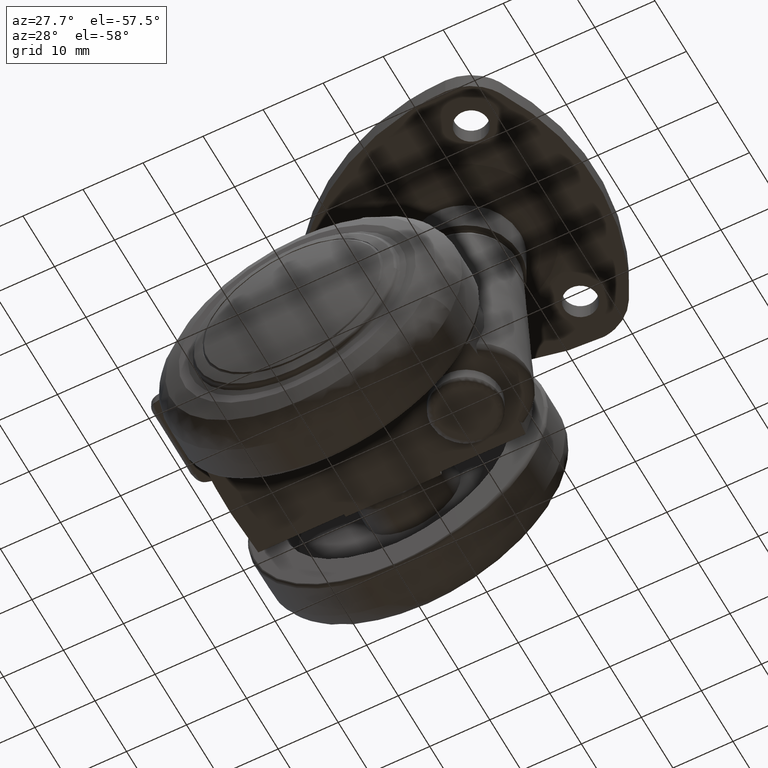
[diagram: clean part render]
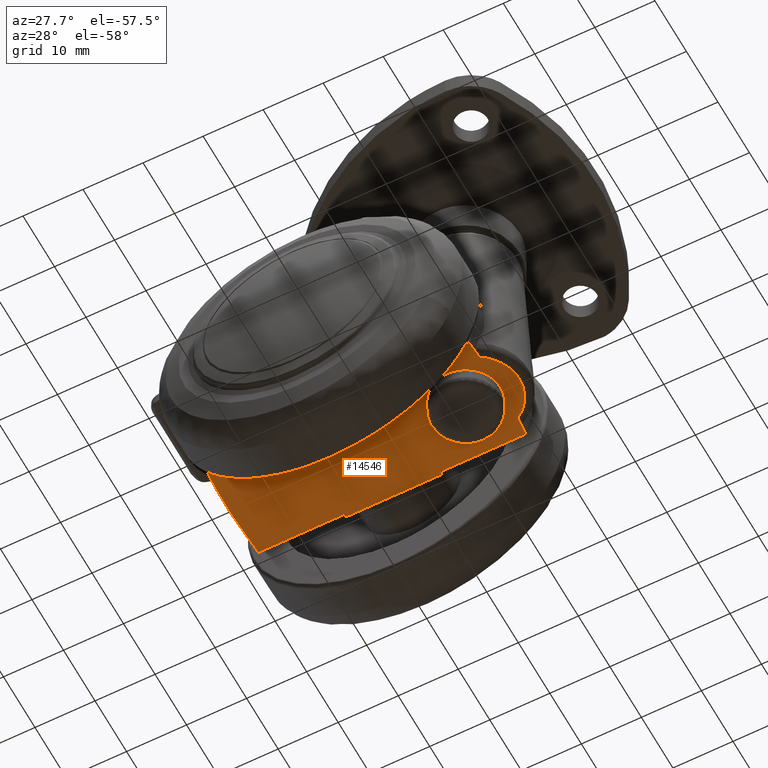
[diagram: same view with one face highlighted and labeled with its STEP entity id]
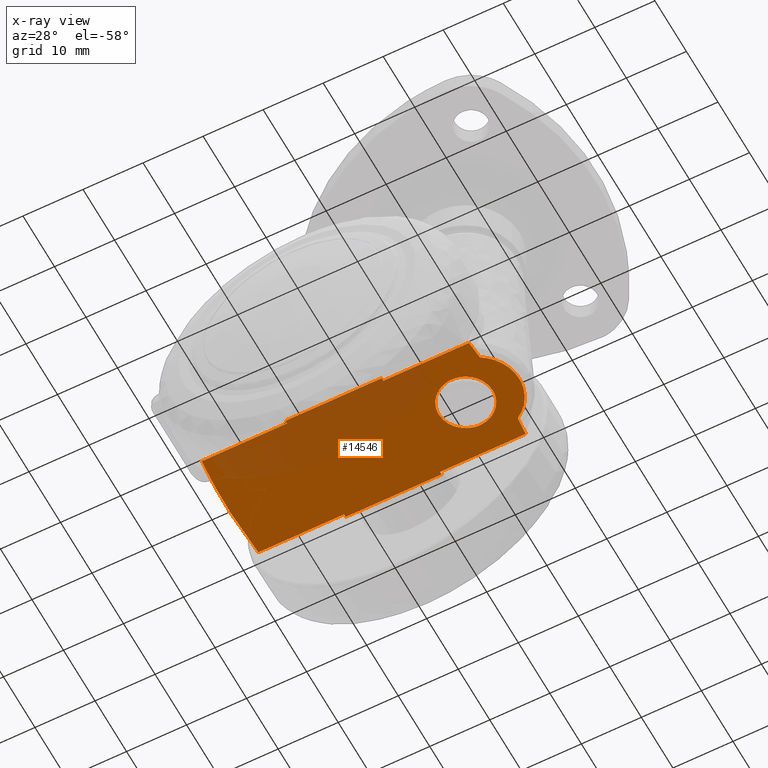
[diagram: x-ray of the same camera — body ghosted, the highlighted face saturated]
A machine part, auxiliary view. The second image highlights one B-rep face of the part: STEP entity #14546.
The next image is the same camera in x-ray: the body ghosted, the highlighted face saturated — about 31% of this face is hidden behind the body in this view.
In plain terms, the highlighted face is a freeform B-spline surface patch.
Its self-contained STEP definition (entity closure, byte-faithful):
#10879=CARTESIAN_POINT('',(16.441430532839370,-4.465198780604559,-7.499999999999998));
#10880=VERTEX_POINT('',#10879);
#10886=CARTESIAN_POINT('',(12.500000000000000,-2.755364E-015,-7.500000000000000));
#10887=VERTEX_POINT('',#10886);
#10888=CARTESIAN_POINT('',(16.441430532839366,-4.465198780604559,-7.499999999999998));
#10889=CARTESIAN_POINT('',(12.499999999999998,-3.972149565837255,-7.499999999999999));
#10890=CARTESIAN_POINT('',(12.500000000000000,-2.755364E-015,-7.500000000000000));
#10898=(BOUNDED_CURVE()B_SPLINE_CURVE(2,(#10888,#10889,#10890),.UNSPECIFIED.,.F.,.U.)B_SPLINE_CURVE_WITH_KNOTS((3,3),(0.271473681878583,0.500000000000000),.UNSPECIFIED.)CURVE()GEOMETRIC_REPRESENTATION_ITEM()RATIONAL_B_SPLINE_CURVE((0.954005909785564,0.732264764407324,1.0))REPRESENTATION_ITEM(''));
#10899=EDGE_CURVE('',#10880,#10887,#10898,.T.);
#10901=CARTESIAN_POINT('',(17.039269409921101,4.499828653787210,-7.500000000000000));
#10902=VERTEX_POINT('',#10901);
#10903=CARTESIAN_POINT('',(12.500000000000000,-2.755364E-015,-7.500000000000000));
#10904=CARTESIAN_POINT('',(12.499999999999998,4.499999999999998,-7.500000000000000));
#10905=CARTESIAN_POINT('',(17.0,4.499999999999997,-7.500000000000000));
#10906=CARTESIAN_POINT('',(17.019635078871588,4.499999999999997,-7.500000000000000));
#10907=CARTESIAN_POINT('',(17.039269409921097,4.499828653787210,-7.500000000000000));
#10915=(BOUNDED_CURVE()B_SPLINE_CURVE(2,(#10903,#10904,#10905,#10906,#10907),.UNSPECIFIED.,.F.,.U.)B_SPLINE_CURVE_WITH_KNOTS((3,2,3),(0.500000000000000,0.750000000000000,0.751539894348956),.UNSPECIFIED.)CURVE()GEOMETRIC_REPRESENTATION_ITEM()RATIONAL_B_SPLINE_CURVE((1.0,0.707106781186547,1.0,0.998195901550007,0.996414028068079))REPRESENTATION_ITEM(''));
#10916=EDGE_CURVE('',#10887,#10902,#10915,.T.);
#10996=CARTESIAN_POINT('',(21.500000000000000,-2.755364E-015,-7.500000000000000));
#10997=VERTEX_POINT('',#10996);
#10998=CARTESIAN_POINT('',(17.039269409921097,4.499828653787210,-7.500000000000000));
#10999=CARTESIAN_POINT('',(21.499999999999996,4.460900447323635,-7.500000000000001));
#11000=CARTESIAN_POINT('',(21.500000000000000,-2.755364E-015,-7.500000000000000));
#11008=(BOUNDED_CURVE()B_SPLINE_CURVE(2,(#10998,#10999,#11000),.UNSPECIFIED.,.F.,.U.)B_SPLINE_CURVE_WITH_KNOTS((3,3),(0.751539894348955,1.0),.UNSPECIFIED.)CURVE()GEOMETRIC_REPRESENTATION_ITEM()RATIONAL_B_SPLINE_CURVE((0.996414028068080,0.708910879636540,1.0))REPRESENTATION_ITEM(''));
#11009=EDGE_CURVE('',#10902,#10997,#11008,.T.);
#11011=CARTESIAN_POINT('',(21.500000000000000,-2.755364E-015,-7.500000000000000));
#11012=CARTESIAN_POINT('',(21.500000000000000,-4.500000000000004,-7.500000000000000));
#11013=CARTESIAN_POINT('',(17.0,-4.500000000000003,-7.500000000000000));
#11014=CARTESIAN_POINT('',(16.719631135490040,-4.500000000000003,-7.500000000000001));
#11015=CARTESIAN_POINT('',(16.441430532839373,-4.465198780604559,-7.499999999999998));
#11023=(BOUNDED_CURVE()B_SPLINE_CURVE(2,(#11011,#11012,#11013,#11014,#11015),.UNSPECIFIED.,.F.,.U.)B_SPLINE_CURVE_WITH_KNOTS((3,2,3),(0.0,0.250000000000000,0.271473681878583),.UNSPECIFIED.)CURVE()GEOMETRIC_REPRESENTATION_ITEM()RATIONAL_B_SPLINE_CURVE((1.0,0.707106781186547,1.0,0.974842016779223,0.954005909785564))REPRESENTATION_ITEM(''));
#11024=EDGE_CURVE('',#10997,#10880,#11023,.T.);
#12927=CARTESIAN_POINT('',(22.508473345036649,6.008970139218520,-7.500000000000000));
#12928=VERTEX_POINT('',#12927);
#13939=CARTESIAN_POINT('',(22.508473345036649,-6.008970139218490,-7.500000000000000));
#13940=VERTEX_POINT('',#13939);
#14046=CARTESIAN_POINT('',(22.508473345036649,6.008970139218517,-7.500000000000000));
#14047=CARTESIAN_POINT('',(25.923797487043977,3.971716724947550,-7.500000000000000));
#14048=CARTESIAN_POINT('',(25.923797487043981,8.572244E-016,-7.500000000000000));
#14049=CARTESIAN_POINT('',(25.923797487043977,-3.971716724947548,-7.500000000000000));
#14050=CARTESIAN_POINT('',(22.508473345036649,-6.008970139218516,-7.500000000000000));
#14058=(BOUNDED_CURVE()B_SPLINE_CURVE(2,(#14046,#14047,#14048,#14049,#14050),.UNSPECIFIED.,.F.,.U.)B_SPLINE_CURVE_WITH_KNOTS((3,2,3),(0.0,0.500000000000000,1.0),.UNSPECIFIED.)CURVE()GEOMETRIC_REPRESENTATION_ITEM()RATIONAL_B_SPLINE_CURVE((1.0,0.869752913530884,1.0,0.869752913530884,1.0))REPRESENTATION_ITEM(''));
#14059=EDGE_CURVE('',#12928,#13940,#14058,.T.);
#14154=CARTESIAN_POINT('',(8.000000000000199,-9.0,-7.500000000000000));
#14155=VERTEX_POINT('',#14154);
#14168=CARTESIAN_POINT('',(8.000000000000231,-9.499999999999890,-7.500000000000000));
#14169=VERTEX_POINT('',#14168);
#14175=CARTESIAN_POINT('',(8.000000000000199,-9.0,-7.500000000000000));
#14176=CARTESIAN_POINT('',(8.000000000000231,-9.499999999999890,-7.500000000000000));
#14177=QUASI_UNIFORM_CURVE('',1,(#14175,#14176),.UNSPECIFIED.,.F.,.U.);
#14178=EDGE_CURVE('',#14155,#14169,#14177,.T.);
#14197=CARTESIAN_POINT('',(-7.999999999999789,-9.0,-7.500000000000000));
#14198=VERTEX_POINT('',#14197);
#14204=CARTESIAN_POINT('',(-7.999999999999789,-9.499999999999890,-7.500000000000000));
#14205=VERTEX_POINT('',#14204);
#14206=CARTESIAN_POINT('',(-7.999999999999789,-9.0,-7.500000000000000));
#14207=CARTESIAN_POINT('',(-7.999999999999789,-9.499999999999890,-7.500000000000000));
#14208=QUASI_UNIFORM_CURVE('',1,(#14206,#14207),.UNSPECIFIED.,.F.,.U.);
#14209=EDGE_CURVE('',#14198,#14205,#14208,.T.);
#14247=CARTESIAN_POINT('',(-7.999999999999789,-9.499999999999890,-7.500000000000000));
#14248=CARTESIAN_POINT('',(8.000000000000231,-9.499999999999890,-7.500000000000000));
#14249=QUASI_UNIFORM_CURVE('',1,(#14247,#14248),.UNSPECIFIED.,.F.,.U.);
#14250=EDGE_CURVE('',#14205,#14169,#14249,.T.);
#14351=CARTESIAN_POINT('',(8.000000000000231,9.500000000000108,-7.500000000000000));
#14352=VERTEX_POINT('',#14351);
#14358=CARTESIAN_POINT('',(-7.999999999999789,9.500000000000108,-7.500000000000000));
#14359=VERTEX_POINT('',#14358);
#14360=CARTESIAN_POINT('',(-7.999999999999789,9.500000000000108,-7.500000000000000));
#14361=CARTESIAN_POINT('',(8.000000000000231,9.500000000000108,-7.500000000000000));
#14362=QUASI_UNIFORM_CURVE('',1,(#14360,#14361),.UNSPECIFIED.,.F.,.U.);
#14363=EDGE_CURVE('',#14359,#14352,#14362,.T.);
#14385=CARTESIAN_POINT('',(-7.999999999999789,8.999999999999901,-7.500000000000000));
#14386=VERTEX_POINT('',#14385);
#14387=CARTESIAN_POINT('',(-7.999999999999789,9.500000000000108,-7.500000000000000));
#14388=CARTESIAN_POINT('',(-7.999999999999789,8.999999999999901,-7.500000000000000));
#14389=QUASI_UNIFORM_CURVE('',1,(#14387,#14388),.UNSPECIFIED.,.F.,.U.);
#14390=EDGE_CURVE('',#14359,#14386,#14389,.T.);
#14407=CARTESIAN_POINT('',(8.000000000000231,8.999999999999901,-7.500000000000000));
#14408=VERTEX_POINT('',#14407);
#14414=CARTESIAN_POINT('',(8.000000000000231,9.500000000000108,-7.500000000000000));
#14415=CARTESIAN_POINT('',(8.000000000000231,8.999999999999901,-7.500000000000000));
#14416=QUASI_UNIFORM_CURVE('',1,(#14414,#14415),.UNSPECIFIED.,.F.,.U.);
#14417=EDGE_CURVE('',#14352,#14408,#14416,.T.);
#14449=CARTESIAN_POINT('',(22.271056962330849,-9.0,-7.500000000000000));
#14450=VERTEX_POINT('',#14449);
#14464=CARTESIAN_POINT('',(22.271056962330849,-9.0,-7.500000000000000));
#14465=CARTESIAN_POINT('',(22.365907716105198,-8.005315201643915,-7.500000000000000));
#14466=CARTESIAN_POINT('',(22.445051108199991,-7.008305928470444,-7.500000000000000));
#14467=CARTESIAN_POINT('',(22.508473345036649,-6.008970139218490,-7.500000000000000));
#14468=B_SPLINE_CURVE_WITH_KNOTS('',3,(#14464,#14465,#14466,#14467),.UNSPECIFIED.,.F.,.U.,(4,4),(0.987302015286309,1.0),.UNSPECIFIED.);
#14469=EDGE_CURVE('',#14450,#13940,#14468,.T.);
#14474=CARTESIAN_POINT('',(-25.127545805969270,-10.449049963174200,-7.500000000000000));
#14475=CARTESIAN_POINT('',(28.352499684814891,-10.449049963174200,-7.500000000000000));
#14476=CARTESIAN_POINT('',(-25.127545805969270,10.449050472794140,-7.500000000000000));
#14477=CARTESIAN_POINT('',(28.352499684814891,10.449050472794140,-7.500000000000000));
#14478=B_SPLINE_SURFACE_WITH_KNOTS('',1,1,((#14474,#14476),(#14475,#14477)),.UNSPECIFIED.,.F.,.F.,.U.,(2,2),(2,2),(0.0,53.480045490784157),(0.0,20.898100435968342),.UNSPECIFIED.);
#14479=CARTESIAN_POINT('',(22.271056962330899,9.0,-7.500000000000000));
#14480=VERTEX_POINT('',#14479);
#14481=CARTESIAN_POINT('',(22.508473345036649,6.008970139218520,-7.500000000000000));
#14482=CARTESIAN_POINT('',(22.445029146177308,7.008649669417468,-7.500000000000000));
#14483=CARTESIAN_POINT('',(22.365875098585281,8.005657028487292,-7.500000000000001));
#14484=CARTESIAN_POINT('',(22.271056962330899,9.0,-7.500000000000000));
#14485=B_SPLINE_CURVE_WITH_KNOTS('',3,(#14481,#14482,#14483,#14484),.UNSPECIFIED.,.F.,.U.,(4,4),(0.0,0.012657862134114),.UNSPECIFIED.);
#14486=EDGE_CURVE('',#12928,#14480,#14485,.T.);
#14487=ORIENTED_EDGE('',*,*,#14486,.F.);
#14488=ORIENTED_EDGE('',*,*,#14059,.T.);
#14489=ORIENTED_EDGE('',*,*,#14469,.F.);
#14490=CARTESIAN_POINT('',(22.271056962330849,-9.0,-7.500000000000000));
#14491=CARTESIAN_POINT('',(8.000000000000199,-9.0,-7.500000000000000));
#14492=QUASI_UNIFORM_CURVE('',1,(#14490,#14491),.UNSPECIFIED.,.F.,.U.);
#14493=EDGE_CURVE('',#14450,#14155,#14492,.T.);
#14494=ORIENTED_EDGE('',*,*,#14493,.T.);
#14495=ORIENTED_EDGE('',*,*,#14178,.T.);
#14496=ORIENTED_EDGE('',*,*,#14250,.F.);
#14497=ORIENTED_EDGE('',*,*,#14209,.F.);
#14498=CARTESIAN_POINT('',(-22.271056962330899,-9.0,-7.500000000000000));
#14499=VERTEX_POINT('',#14498);
#14500=CARTESIAN_POINT('',(-7.999999999999789,-9.0,-7.500000000000000));
#14501=CARTESIAN_POINT('',(-22.271056962330899,-9.0,-7.500000000000000));
#14502=QUASI_UNIFORM_CURVE('',1,(#14500,#14501),.UNSPECIFIED.,.F.,.U.);
#14503=EDGE_CURVE('',#14198,#14499,#14502,.T.);
#14504=ORIENTED_EDGE('',*,*,#14503,.T.);
#14505=CARTESIAN_POINT('',(-22.271056962330899,9.0,-7.500000000000000));
#14506=VERTEX_POINT('',#14505);
#14507=CARTESIAN_POINT('',(-22.271056962330899,9.0,-7.500000000000000));
#14508=CARTESIAN_POINT('',(-22.326246436391131,8.421113523567511,-7.500000000000000));
#14509=CARTESIAN_POINT('',(-22.376107840399680,7.841567522138998,-7.500000000000000));
#14510=CARTESIAN_POINT('',(-22.607889066678592,4.822462405177966,-7.500000000000000));
#14511=CARTESIAN_POINT('',(-22.701146241926342,2.371928352875127,-7.499999999999999));
#14512=CARTESIAN_POINT('',(-22.697628886571451,-1.321623607242038,-7.499999999999997));
#14513=CARTESIAN_POINT('',(-22.672520384214948,-2.555770472345564,-7.500000000000002));
#14514=CARTESIAN_POINT('',(-22.610680921234270,-4.102223723649644,-7.499999999999999));
#14515=CARTESIAN_POINT('',(-22.596786909220739,-4.411712442788734,-7.500000000000001));
#14516=CARTESIAN_POINT('',(-22.566012359647061,-5.029699530149097,-7.499999999999998));
#14517=CARTESIAN_POINT('',(-22.515351681856671,-5.955708155191383,-7.500000000000001));
#14518=CARTESIAN_POINT('',(-22.451252646681070,-6.878813337347844,-7.500000000000000));
#14519=CARTESIAN_POINT('',(-22.362715623734921,-7.996148128712547,-7.500000000000000));
#14520=CARTESIAN_POINT('',(-22.318867952421201,-8.498502214515414,-7.500000000000000));
#14521=CARTESIAN_POINT('',(-22.271056962330899,-9.0,-7.500000000000000));
#14522=B_SPLINE_CURVE_WITH_KNOTS('',3,(#14507,#14508,#14509,#14510,#14511,#14512,#14513,#14514,#14515,#14516,#14517,#14518,#14519,#14520,#14521),.UNSPECIFIED.,.F.,.U.,(4,2,2,2,2,1,2,4),(0.461315755579124,0.468749999999992,0.499999999999991,0.515624999999991,0.519531249999991,0.523437499999991,0.531249999999991,0.537651572681553),.UNSPECIFIED.);
#14523=EDGE_CURVE('',#14506,#14499,#14522,.T.);
#14524=ORIENTED_EDGE('',*,*,#14523,.F.);
#14525=CARTESIAN_POINT('',(-22.271056962330899,9.0,-7.500000000000000));
#14526=CARTESIAN_POINT('',(-7.999999999999789,8.999999999999901,-7.500000000000000));
#14527=QUASI_UNIFORM_CURVE('',1,(#14525,#14526),.UNSPECIFIED.,.F.,.U.);
#14528=EDGE_CURVE('',#14506,#14386,#14527,.T.);
#14529=ORIENTED_EDGE('',*,*,#14528,.T.);
#14530=ORIENTED_EDGE('',*,*,#14390,.F.);
#14531=ORIENTED_EDGE('',*,*,#14363,.T.);
#14532=ORIENTED_EDGE('',*,*,#14417,.T.);
#14533=CARTESIAN_POINT('',(8.000000000000231,8.999999999999901,-7.500000000000000));
#14534=CARTESIAN_POINT('',(22.271056962330899,9.0,-7.500000000000000));
#14535=QUASI_UNIFORM_CURVE('',1,(#14533,#14534),.UNSPECIFIED.,.F.,.U.);
#14536=EDGE_CURVE('',#14408,#14480,#14535,.T.);
#14537=ORIENTED_EDGE('',*,*,#14536,.T.);
#14538=EDGE_LOOP('',(#14487,#14488,#14489,#14494,#14495,#14496,#14497,#14504,#14524,#14529,#14530,#14531,#14532,#14537));
#14539=FACE_OUTER_BOUND('',#14538,.T.);
#14540=ORIENTED_EDGE('',*,*,#10916,.F.);
#14541=ORIENTED_EDGE('',*,*,#10899,.F.);
#14542=ORIENTED_EDGE('',*,*,#11024,.F.);
#14543=ORIENTED_EDGE('',*,*,#11009,.F.);
#14544=EDGE_LOOP('',(#14540,#14541,#14542,#14543));
#14545=FACE_BOUND('',#14544,.T.);
#14546=ADVANCED_FACE('',(#14539,#14545),#14478,.F.);